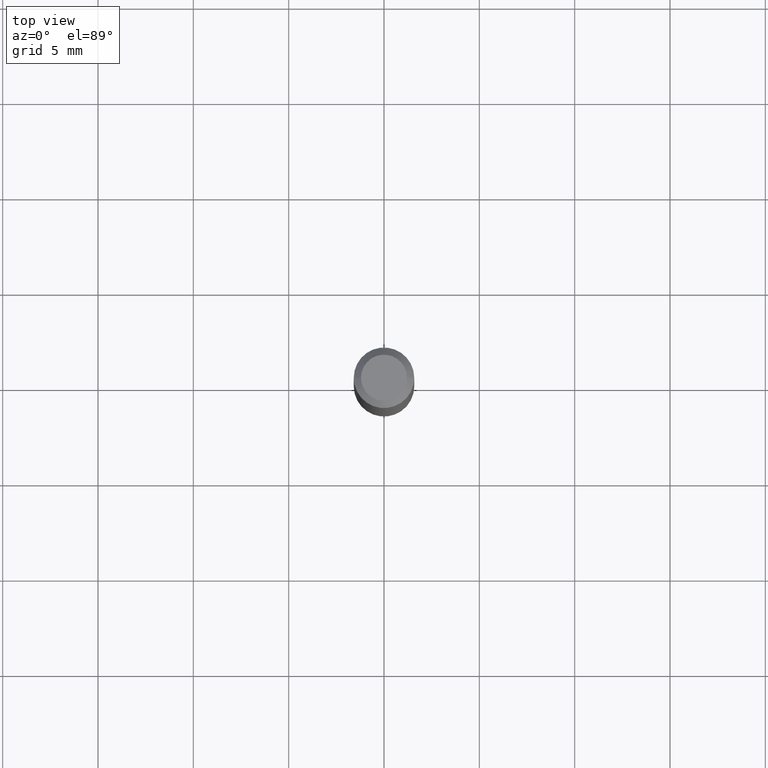
[diagram: clean part render]
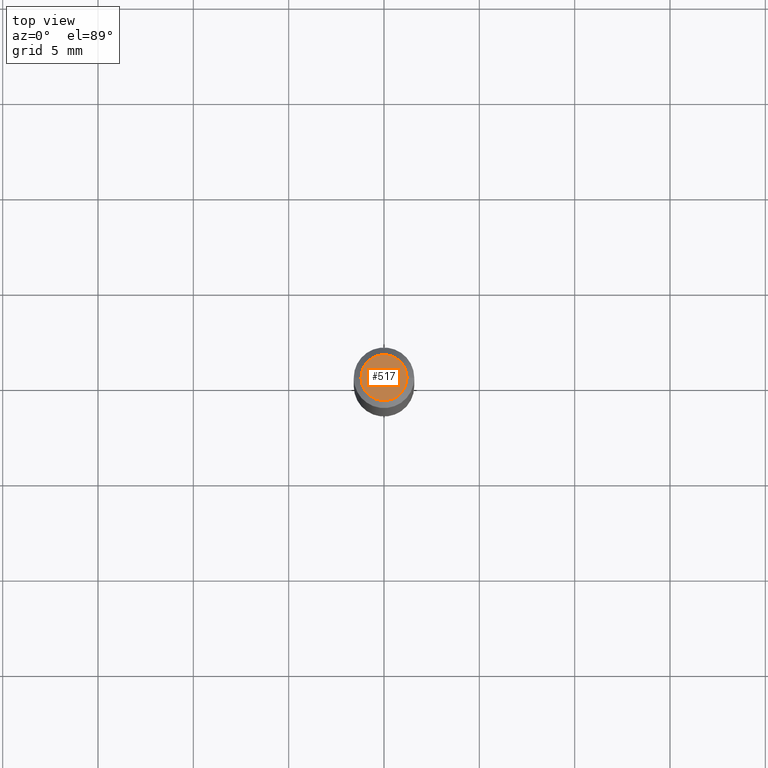
[diagram: same view with one face highlighted and labeled with its STEP entity id]
A machine part, top view. The second image highlights one B-rep face of the part: STEP entity #517.
In plain terms, the highlighted planar face has unit normal (0, -0, -1).
Its self-contained STEP definition (entity closure, byte-faithful):
#4 = CARTESIAN_POINT ( 'NONE',  ( 7.070806723891919892E-46, -1.009523804376275185E-31, -2.891391092786900313E-17 ) ) ;
#18 = AXIS2_PLACEMENT_3D ( 'NONE', #437, #121, #155 ) ;
#82 = ORIENTED_EDGE ( 'NONE', *, *, #351, .T. ) ;
#91 = CIRCLE ( 'NONE', #202, 0.04749999999999999362 ) ;
#99 = VERTEX_POINT ( 'NONE', #281 ) ;
#121 = DIRECTION ( 'NONE',  ( 2.438088387897960049E-29, -3.491481338843145188E-15, -1.000000000000000000 ) ) ;
#155 = DIRECTION ( 'NONE',  ( -1.000000000000000000, 6.982962677686265922E-15, -4.876176775795935793E-29 ) ) ;
#161 = PLANE ( 'NONE',  #18 ) ;
#198 = EDGE_LOOP ( 'NONE', ( #269, #82 ) ) ;
#202 = AXIS2_PLACEMENT_3D ( 'NONE', #397, #515, #481 ) ;
#239 = DIRECTION ( 'NONE',  ( 1.000000000000000000, -6.982962677686267499E-15, 4.876681293081646444E-29 ) ) ;
#269 = ORIENTED_EDGE ( 'NONE', *, *, #335, .T. ) ;
#281 = CARTESIAN_POINT ( 'NONE',  ( -0.04749999999999999362, 3.578768372314209027E-16, -2.891391092787141902E-17 ) ) ;
#314 = DIRECTION ( 'NONE',  ( -2.445468806185136597E-29, 3.491481338843145583E-15, 1.000000000000000000 ) ) ;
#335 = EDGE_CURVE ( 'NONE', #99, #433, #427, .T. ) ;
#351 = EDGE_CURVE ( 'NONE', #433, #99, #91, .T. ) ;
#397 = CARTESIAN_POINT ( 'NONE',  ( 7.070806723891919892E-46, -1.009523804376275185E-31, -2.891391092786900313E-17 ) ) ;
#427 = CIRCLE ( 'NONE', #473, 0.04749999999999999362 ) ;
#433 = VERTEX_POINT ( 'NONE', #518 ) ;
#437 = CARTESIAN_POINT ( 'NONE',  ( 3.316907271900976096E-16, 0.04749999999999999362, -1.803023190589839165E-16 ) ) ;
#473 = AXIS2_PLACEMENT_3D ( 'NONE', #4, #314, #239 ) ;
#481 = DIRECTION ( 'NONE',  ( 1.000000000000000000, -6.982962677686267499E-15, 4.876681293081646444E-29 ) ) ;
#490 = FACE_OUTER_BOUND ( 'NONE', #198, .T. ) ;
#515 = DIRECTION ( 'NONE',  ( -2.445468806185136597E-29, 3.491481338843145583E-15, 1.000000000000000000 ) ) ;
#517 = ADVANCED_FACE ( 'NONE', ( #490 ), #161, .F. ) ;
#518 = CARTESIAN_POINT ( 'NONE',  ( 0.04749999999999999362, -4.035134999187579609E-16, -2.891391092786643317E-17 ) ) ;